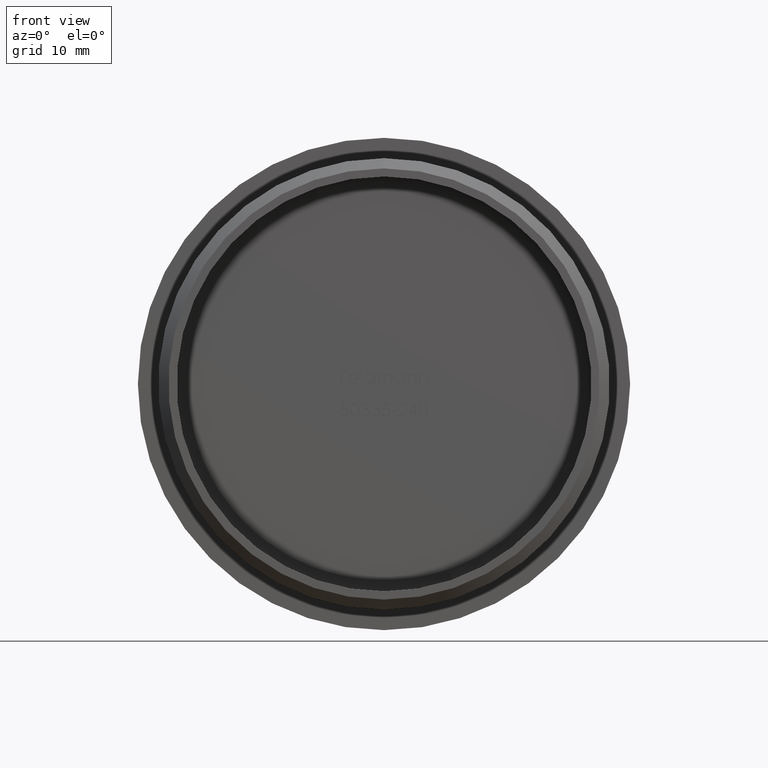
[diagram: clean part render]
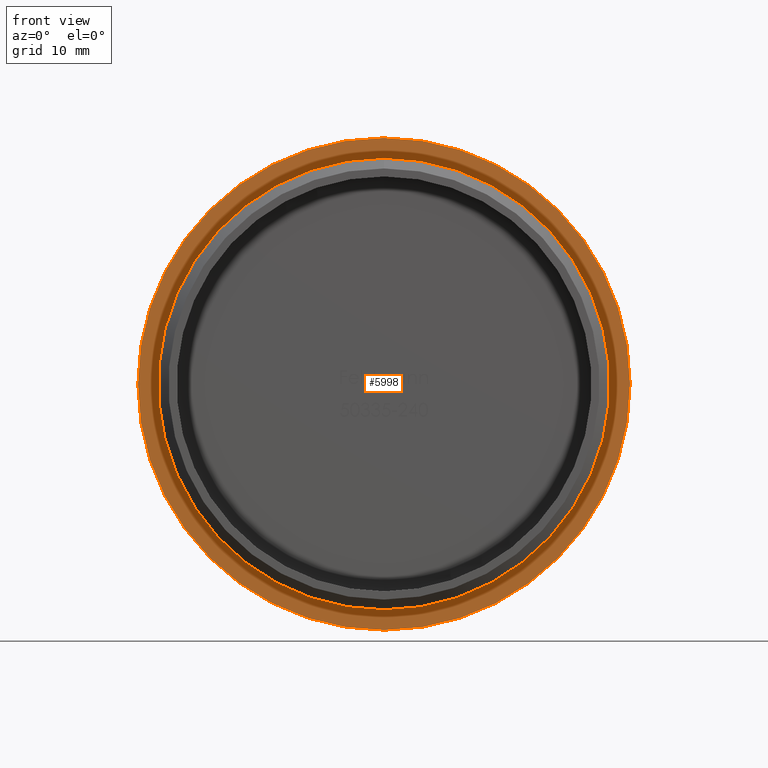
[diagram: same view with one face highlighted and labeled with its STEP entity id]
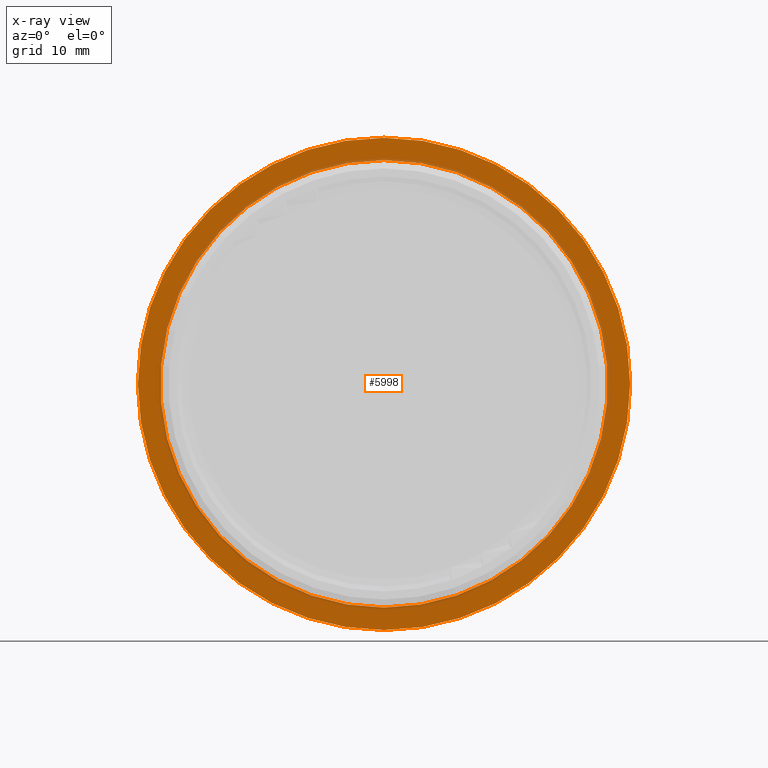
[diagram: x-ray of the same camera — body ghosted, the highlighted face saturated]
A machine part, front view. The second image highlights one B-rep face of the part: STEP entity #5998.
The next image is the same camera in x-ray: the body ghosted, the highlighted face saturated — about 9% of this face is hidden behind the body in this view.
In plain terms, the highlighted planar face has unit normal (0, -1, -0).
Its self-contained STEP definition (entity closure, byte-faithful):
#11 = DIRECTION ( 'NONE',  ( -0.0000000000000000000, -1.000000000000000000, -0.0000000000000000000 ) ) ;
#739 = DIRECTION ( 'NONE',  ( 0.0000000000000000000, 0.0000000000000000000, -1.000000000000000000 ) ) ;
#841 = ORIENTED_EDGE ( 'NONE', *, *, #1708, .T. ) ;
#993 = AXIS2_PLACEMENT_3D ( 'NONE', #11370, #11414, #11462 ) ;
#1170 = CARTESIAN_POINT ( 'NONE',  ( 0.0000000000000000000, 15.00000000000000000, 0.0000000000000000000 ) ) ;
#1708 = EDGE_CURVE ( 'NONE', #4033, #4985, #5677, .T. ) ;
#1844 = CARTESIAN_POINT ( 'NONE',  ( 0.0000000000000000000, 15.00000000000000000, 0.0000000000000000000 ) ) ;
#2406 = DIRECTION ( 'NONE',  ( -0.0000000000000000000, -1.000000000000000000, -0.0000000000000000000 ) ) ;
#3496 = DIRECTION ( 'NONE',  ( 0.0000000000000000000, 0.0000000000000000000, -1.000000000000000000 ) ) ;
#3603 = FACE_OUTER_BOUND ( 'NONE', #8632, .T. ) ;
#3872 = EDGE_CURVE ( 'NONE', #4495, #9427, #13620, .T. ) ;
#4033 = VERTEX_POINT ( 'NONE', #13451 ) ;
#4290 = CARTESIAN_POINT ( 'NONE',  ( 0.0000000000000000000, 15.00000000000000000, 0.0000000000000000000 ) ) ;
#4495 = VERTEX_POINT ( 'NONE', #13466 ) ;
#4803 = EDGE_CURVE ( 'NONE', #4985, #4033, #13282, .T. ) ;
#4882 = AXIS2_PLACEMENT_3D ( 'NONE', #1844, #12799, #739 ) ;
#4985 = VERTEX_POINT ( 'NONE', #7118 ) ;
#5253 = DIRECTION ( 'NONE',  ( 0.0000000000000000000, 0.0000000000000000000, -1.000000000000000000 ) ) ;
#5538 = AXIS2_PLACEMENT_3D ( 'NONE', #1170, #2406, #3496 ) ;
#5677 = CIRCLE ( 'NONE', #4882, 24.15000000000000600 ) ;
#5963 = CIRCLE ( 'NONE', #8068, 21.95000000000000300 ) ;
#5998 = ADVANCED_FACE ( 'NONE', ( #3603, #9799 ), #12981, .T. ) ;
#6206 = AXIS2_PLACEMENT_3D ( 'NONE', #6365, #11936, #14061 ) ;
#6365 = CARTESIAN_POINT ( 'NONE',  ( 24.15000000000000600, 15.00000000000000000, 0.0000000000000000000 ) ) ;
#7099 = CARTESIAN_POINT ( 'NONE',  ( 2.688099724128440900E-015, 15.00000000000000000, 21.95000000000000300 ) ) ;
#7118 = CARTESIAN_POINT ( 'NONE',  ( 0.0000000000000000000, 15.00000000000000000, -24.15000000000000600 ) ) ;
#8068 = AXIS2_PLACEMENT_3D ( 'NONE', #4290, #11, #5253 ) ;
#8116 = ORIENTED_EDGE ( 'NONE', *, *, #11369, .F. ) ;
#8632 = EDGE_LOOP ( 'NONE', ( #10389, #841 ) ) ;
#9427 = VERTEX_POINT ( 'NONE', #7099 ) ;
#9799 = FACE_BOUND ( 'NONE', #12895, .T. ) ;
#10389 = ORIENTED_EDGE ( 'NONE', *, *, #4803, .T. ) ;
#11369 = EDGE_CURVE ( 'NONE', #9427, #4495, #5963, .T. ) ;
#11370 = CARTESIAN_POINT ( 'NONE',  ( 0.0000000000000000000, 15.00000000000000000, 0.0000000000000000000 ) ) ;
#11414 = DIRECTION ( 'NONE',  ( -0.0000000000000000000, -1.000000000000000000, -0.0000000000000000000 ) ) ;
#11462 = DIRECTION ( 'NONE',  ( 0.0000000000000000000, 0.0000000000000000000, -1.000000000000000000 ) ) ;
#11936 = DIRECTION ( 'NONE',  ( 0.0000000000000000000, -1.000000000000000000, -0.0000000000000000000 ) ) ;
#12799 = DIRECTION ( 'NONE',  ( -0.0000000000000000000, -1.000000000000000000, -0.0000000000000000000 ) ) ;
#12895 = EDGE_LOOP ( 'NONE', ( #14024, #8116 ) ) ;
#12981 = PLANE ( 'NONE',  #6206 ) ;
#13282 = CIRCLE ( 'NONE', #993, 24.15000000000000600 ) ;
#13451 = CARTESIAN_POINT ( 'NONE',  ( 2.957522019940858700E-015, 15.00000000000000000, 24.15000000000000600 ) ) ;
#13466 = CARTESIAN_POINT ( 'NONE',  ( 0.0000000000000000000, 15.00000000000000000, -21.95000000000000300 ) ) ;
#13620 = CIRCLE ( 'NONE', #5538, 21.95000000000000300 ) ;
#14024 = ORIENTED_EDGE ( 'NONE', *, *, #3872, .F. ) ;
#14061 = DIRECTION ( 'NONE',  ( 0.0000000000000000000, 0.0000000000000000000, -1.000000000000000000 ) ) ;